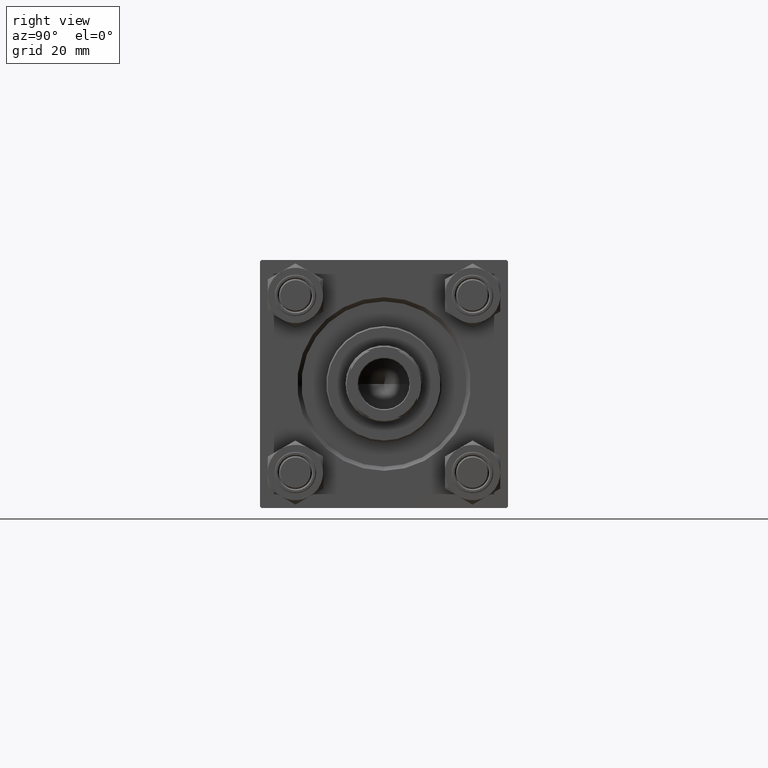
[diagram: clean part render]
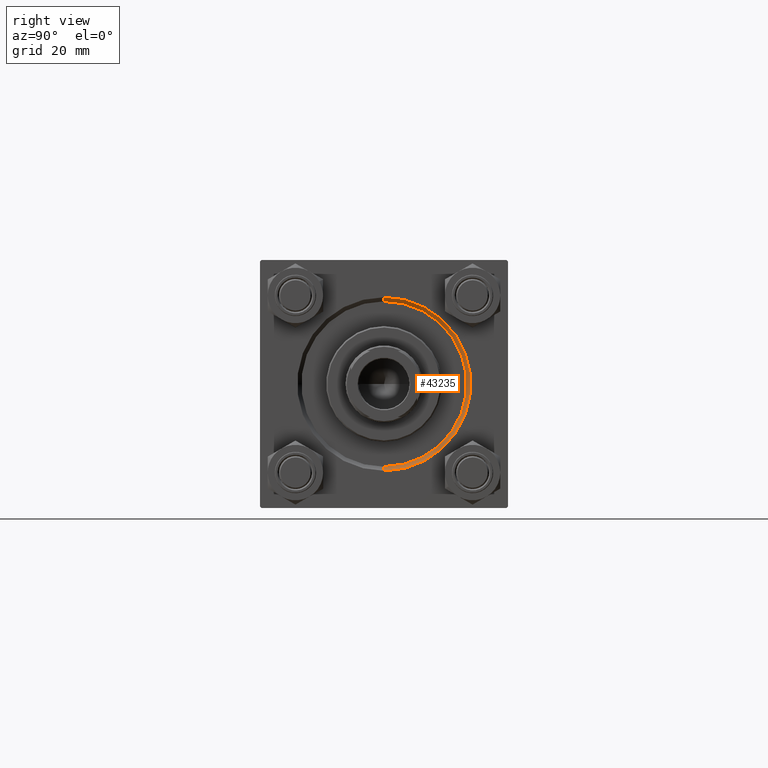
[diagram: same view with one face highlighted and labeled with its STEP entity id]
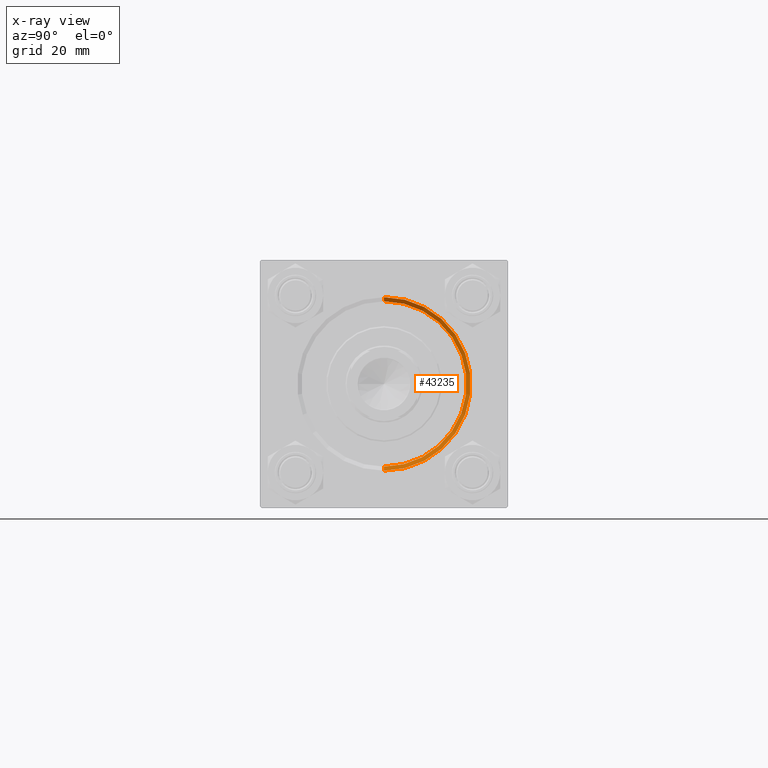
[diagram: x-ray of the same camera — body ghosted, the highlighted face saturated]
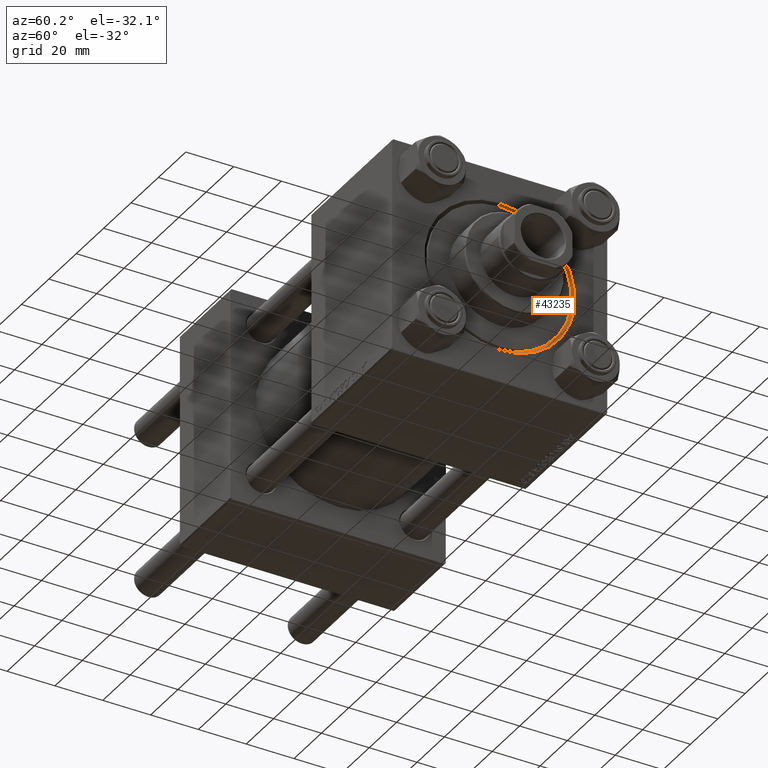
[diagram: same view with one face highlighted and labeled with its STEP entity id]
A machine part, right view. The second image highlights one B-rep face of the part: STEP entity #43235.
The next image is the same camera in x-ray: the body ghosted, the highlighted face saturated — about 0% of this face is hidden behind the body in this view.
A second angle (auxiliary view) of the same face is appended — the face is thin or edge-on in the first view.
In plain terms, the highlighted conical surface has half-angle 45 deg.
Its self-contained STEP definition (entity closure, byte-faithful):
#216 = AXIS2_PLACEMENT_3D ( 'NONE', #2842, #41109, #21213 ) ;
#290 = VERTEX_POINT ( 'NONE', #4758 ) ;
#2842 = CARTESIAN_POINT ( 'NONE',  ( 155.0000000000000000, 0.000000000000000000, 0.000000000000000000 ) ) ;
#4758 = CARTESIAN_POINT ( 'NONE',  ( 155.0000000000000000, 3.857637417314162689E-15, 31.50000000000000000 ) ) ;
#5059 = CARTESIAN_POINT ( 'NONE',  ( 153.5000000000000000, 0.000000000000000000, -30.00000000000000000 ) ) ;
#6056 = LINE ( 'NONE', #5059, #40930 ) ;
#7722 = EDGE_CURVE ( 'NONE', #290, #33303, #23485, .T. ) ;
#7900 = AXIS2_PLACEMENT_3D ( 'NONE', #22812, #44796, #14995 ) ;
#8962 = LINE ( 'NONE', #24325, #22250 ) ;
#9314 = VERTEX_POINT ( 'NONE', #41861 ) ;
#11720 = CARTESIAN_POINT ( 'NONE',  ( 155.0000000000000000, 0.000000000000000000, -31.50000000000000000 ) ) ;
#13225 = DIRECTION ( 'NONE',  ( 1.000000000000000000, 0.000000000000000000, 0.000000000000000000 ) ) ;
#14995 = DIRECTION ( 'NONE',  ( 0.000000000000000000, 0.000000000000000000, 1.000000000000000000 ) ) ;
#15925 = CIRCLE ( 'NONE', #7900, 30.00000000000000000 ) ;
#16410 = EDGE_CURVE ( 'NONE', #9314, #290, #8962, .T. ) ;
#16413 = VERTEX_POINT ( 'NONE', #37664 ) ;
#21213 = DIRECTION ( 'NONE',  ( 0.000000000000000000, 0.000000000000000000, 1.000000000000000000 ) ) ;
#21406 = DIRECTION ( 'NONE',  ( 0.7071067811865474617, 0.000000000000000000, -0.7071067811865474617 ) ) ;
#22250 = VECTOR ( 'NONE', #39693, 1000.000000000000114 ) ;
#22557 = ORIENTED_EDGE ( 'NONE', *, *, #49204, .F. ) ;
#22812 = CARTESIAN_POINT ( 'NONE',  ( 153.5000000000000000, 0.000000000000000000, 0.000000000000000000 ) ) ;
#23352 = EDGE_CURVE ( 'NONE', #16413, #33303, #6056, .T. ) ;
#23485 = CIRCLE ( 'NONE', #216, 31.50000000000000000 ) ;
#24325 = CARTESIAN_POINT ( 'NONE',  ( 153.5000000000000000, 3.673940397442059178E-15, 30.00000000000000000 ) ) ;
#29386 = AXIS2_PLACEMENT_3D ( 'NONE', #32372, #13225, #39429 ) ;
#29424 = ORIENTED_EDGE ( 'NONE', *, *, #23352, .T. ) ;
#32372 = CARTESIAN_POINT ( 'NONE',  ( 153.5000000000000000, 0.000000000000000000, 0.000000000000000000 ) ) ;
#33303 = VERTEX_POINT ( 'NONE', #11720 ) ;
#37664 = CARTESIAN_POINT ( 'NONE',  ( 153.5000000000000000, 0.000000000000000000, -30.00000000000000000 ) ) ;
#38243 = CONICAL_SURFACE ( 'NONE', #29386, 30.00000000000000000, 0.7853981633974482790 ) ;
#39429 = DIRECTION ( 'NONE',  ( 0.000000000000000000, 0.000000000000000000, -1.000000000000000000 ) ) ;
#39693 = DIRECTION ( 'NONE',  ( 0.7071067811865474617, 8.659560562354932858E-17, 0.7071067811865474617 ) ) ;
#39930 = FACE_OUTER_BOUND ( 'NONE', #42893, .T. ) ;
#40930 = VECTOR ( 'NONE', #21406, 1000.000000000000114 ) ;
#41109 = DIRECTION ( 'NONE',  ( -1.000000000000000000, -0.000000000000000000, -0.000000000000000000 ) ) ;
#41861 = CARTESIAN_POINT ( 'NONE',  ( 153.5000000000000000, 3.673940397442059178E-15, 30.00000000000000000 ) ) ;
#42657 = ORIENTED_EDGE ( 'NONE', *, *, #7722, .F. ) ;
#42893 = EDGE_LOOP ( 'NONE', ( #44807, #22557, #29424, #42657 ) ) ;
#43235 = ADVANCED_FACE ( 'NONE', ( #39930 ), #38243, .F. ) ;
#44796 = DIRECTION ( 'NONE',  ( 1.000000000000000000, 0.000000000000000000, 0.000000000000000000 ) ) ;
#44807 = ORIENTED_EDGE ( 'NONE', *, *, #16410, .F. ) ;
#49204 = EDGE_CURVE ( 'NONE', #16413, #9314, #15925, .T. ) ;